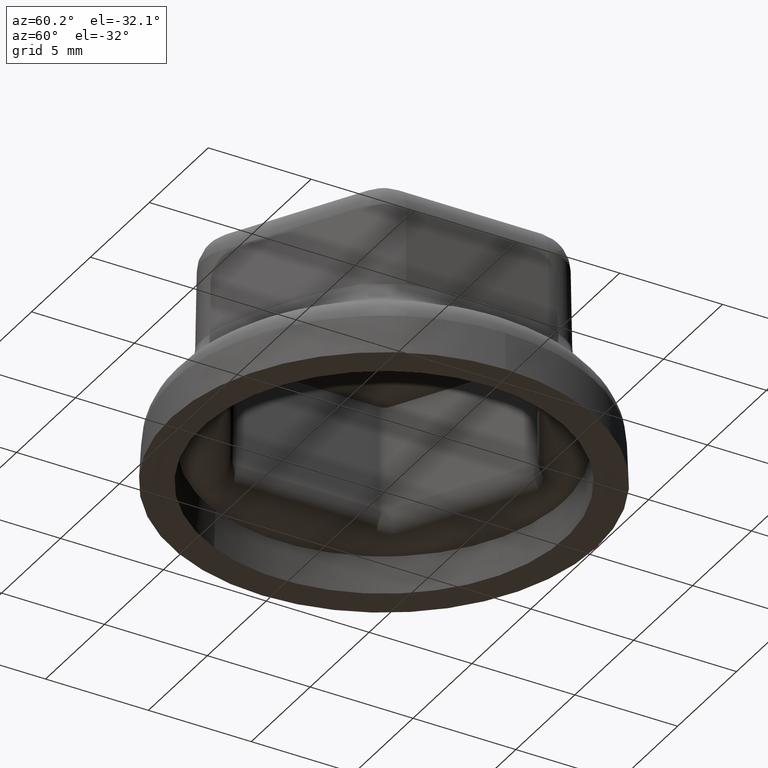
[diagram: clean part render]
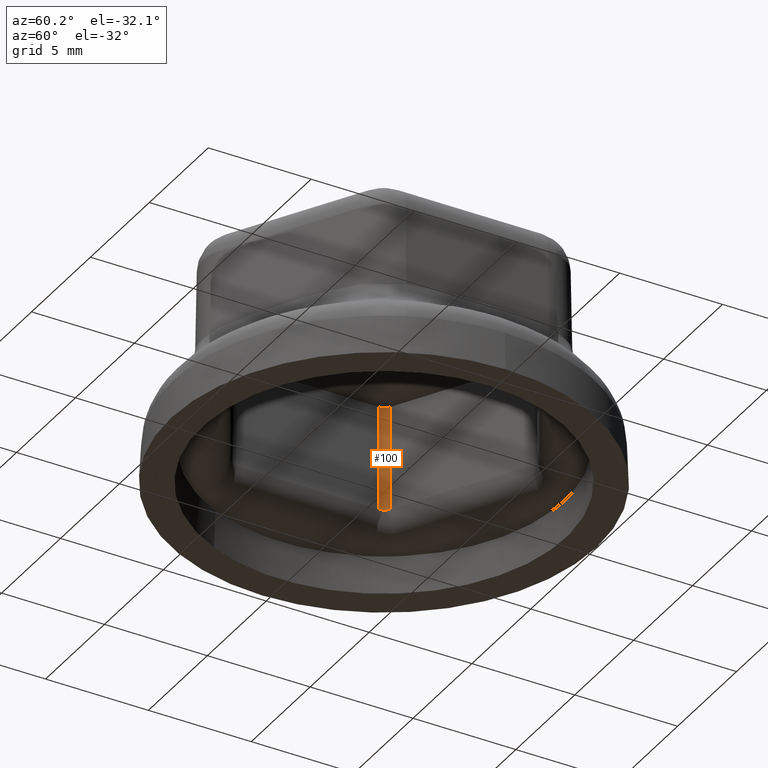
[diagram: same view with one face highlighted and labeled with its STEP entity id]
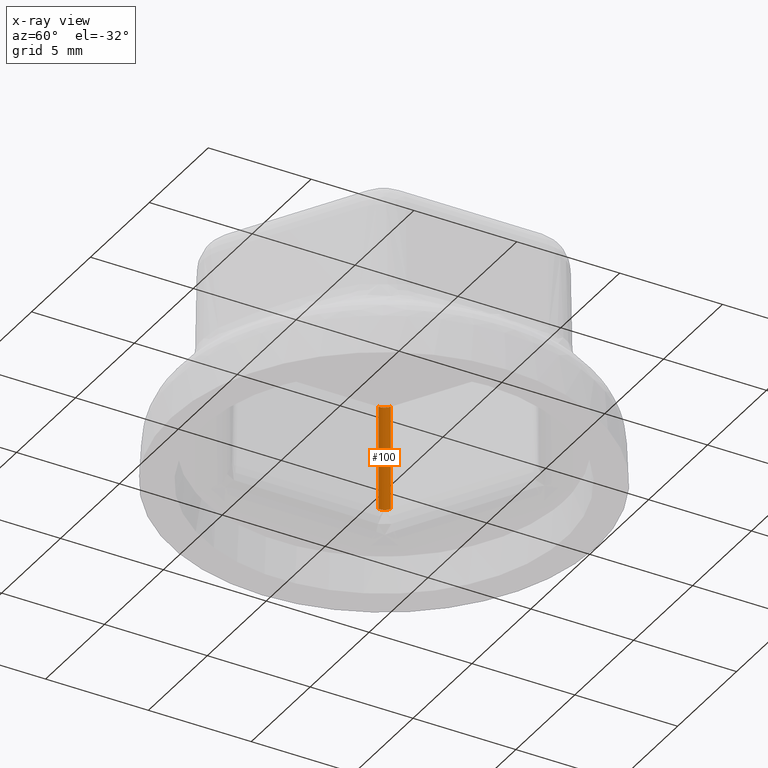
[diagram: x-ray of the same camera — body ghosted, the highlighted face saturated]
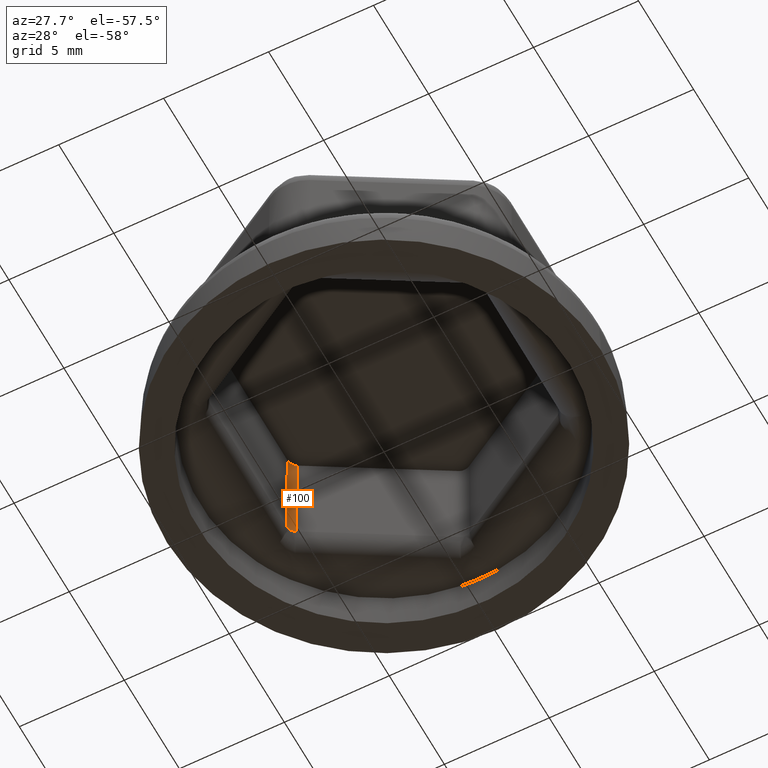
[diagram: same view with one face highlighted and labeled with its STEP entity id]
A machine part, auxiliary view. The second image highlights one B-rep face of the part: STEP entity #100.
The next image is the same camera in x-ray: the body ghosted, the highlighted face saturated — about 0% of this face is hidden behind the body in this view.
A second angle (auxiliary view) of the same face is appended — the face is thin or edge-on in the first view.
In plain terms, the highlighted cylindrical surface (edge-blend (fillet) strip) has radius 0.5 mm, axis along (0.0175, -0.0101, 0.9998).
Its self-contained STEP definition (entity closure, byte-faithful):
#100 = ADVANCED_FACE( '', ( #233 ), #234, .F. );
#233 = FACE_OUTER_BOUND( '', #955, .T. );
#234 = CYLINDRICAL_SURFACE( '', #956, 0.500000000000000 );
#955 = EDGE_LOOP( '', ( #4052, #4053, #4054, #4055, #4056, #4057 ) );
#956 = AXIS2_PLACEMENT_3D( '', #4058, #4059, #4060 );
#4052 = ORIENTED_EDGE( '', *, *, #4621, .T. );
#4053 = ORIENTED_EDGE( '', *, *, #4549, .T. );
#4054 = ORIENTED_EDGE( '', *, *, #4622, .T. );
#4055 = ORIENTED_EDGE( '', *, *, #4617, .F. );
#4056 = ORIENTED_EDGE( '', *, *, #4623, .F. );
#4057 = ORIENTED_EDGE( '', *, *, #4624, .F. );
#4058 = CARTESIAN_POINT( '', ( -6.00012690395247, 3.46417488316887, 1.78836624353683 ) );
#4059 = DIRECTION( '', ( 0.0174515205435363, -0.0100756400835790, 0.999796942337605 ) );
#4060 = DIRECTION( '', ( -0.999847695156391, 0.000000000000000, 0.0174524064372835 ) );
#4549 = EDGE_CURVE( '', #4810, #4808, #4811, .T. );
#4617 = EDGE_CURVE( '', #4922, #4917, #4925, .F. );
#4621 = EDGE_CURVE( '', #4930, #4810, #4931, .T. );
#4622 = EDGE_CURVE( '', #4808, #4917, #4932, .F. );
#4623 = EDGE_CURVE( '', #4933, #4922, #4934, .T. );
#4624 = EDGE_CURVE( '', #4930, #4933, #4935, .F. );
#4808 = VERTEX_POINT( '', #5307 );
#4810 = VERTEX_POINT( '', #5310 );
#4811 = ELLIPSE( '', #5311, 0.500101549451592, 0.500000000000000 );
#4917 = VERTEX_POINT( '', #5519 );
#4922 = VERTEX_POINT( '', #5526 );
#4925 = ELLIPSE( '', #5529, 0.501622324286035, 0.500000000000000 );
#4930 = VERTEX_POINT( '', #5534 );
#4931 = LINE( '', #5535, #5536 );
#4932 = LINE( '', #5537, #5538 );
#4933 = VERTEX_POINT( '', #5539 );
#4934 = B_SPLINE_CURVE_WITH_KNOTS( '', 3, ( #5540, #5541, #5542, #5543, #5544, #5545, #5546, #5547, #5548, #5549, #5550, #5551, #5552, #5553, #5554, #5555, #5556, #5557, #5558, #5559, #5560, #5561 ), .UNSPECIFIED., .F., .F., ( 4, 2, 2, 2, 1, 2, 1, 2, 2, 2, 2, 4 ), ( 0.000000000000000, 5.49841992116954E-005, 0.000109968398423391, 0.000123714448226314, 0.000137460498029238, 0.000164952597635084, 0.000219936796846777, 0.000274920996058469, 0.000302413095664315, 0.000329905195270161, 0.000384889394481854, 0.000439873593693547 ), .UNSPECIFIED. );
#4935 = ELLIPSE( '', #5562, 0.501622324286035, 0.500000000000000 );
#5307 = CARTESIAN_POINT( '', ( -6.38654207796659, 3.39864061993129, 8.30000000000000 ) );
#5310 = CARTESIAN_POINT( '', ( -6.13658015417749, 3.83158737189167, 8.30000000000000 ) );
#5311 = AXIS2_PLACEMENT_3D( '', #6908, #6909, #6910 );
#5519 = CARTESIAN_POINT( '', ( -6.47427435193895, 3.44929287192586, 3.27382139034408 ) );
#5526 = CARTESIAN_POINT( '', ( -6.47250991385350, 3.49151581137032, 3.27263917789931 ) );
#5529 = AXIS2_PLACEMENT_3D( '', #7060, #7061, #7062 );
#5534 = CARTESIAN_POINT( '', ( -6.22431242814985, 3.88223962388623, 3.27382139034407 ) );
#5535 = CARTESIAN_POINT( '', ( -6.24810921654124, 3.89597870606985, 1.91050429646617 ) );
#5536 = VECTOR( '', #7072, 1000.00000000000 );
#5537 = CARTESIAN_POINT( '', ( -6.50005075153067, 3.46417488316887, 1.79709244675547 ) );
#5538 = VECTOR( '', #7073, 1000.00000000000 );
#5539 = CARTESIAN_POINT( '', ( -6.25999634728848, 3.85960010595859, 3.27263917789931 ) );
#5540 = CARTESIAN_POINT( '', ( -6.25999634728848, 3.85960010595859, 3.27263917789931 ) );
#5541 = CARTESIAN_POINT( '', ( -6.27515488291305, 3.84905825585473, 3.27216488131924 ) );
#5542 = CARTESIAN_POINT( '', ( -6.28961220870078, 3.83777585854451, 3.27115045498151 ) );
#5543 = CARTESIAN_POINT( '', ( -6.31718901267723, 3.81373366285170, 3.26883583886952 ) );
#5544 = CARTESIAN_POINT( '', ( -6.33030817333123, 3.80097375482324, 3.26753279845114 ) );
#5545 = CARTESIAN_POINT( '', ( -6.34586799356442, 3.78406703065293, 3.26607319874848 ) );
#5546 = CARTESIAN_POINT( '', ( -6.34894163142452, 3.78063330977052, 3.26578893296939 ) );
#5547 = CARTESIAN_POINT( '', ( -6.35498474380207, 3.77369078453924, 3.26524508511817 ) );
#5548 = CARTESIAN_POINT( '', ( -6.36388472680924, 3.76317482089631, 3.26446684285765 ) );
#5549 = CARTESIAN_POINT( '', ( -6.37229674791125, 3.75235579819300, 3.26382763882138 ) );
#5550 = CARTESIAN_POINT( '', ( -6.38848067163897, 3.73031959454378, 3.26278490250371 ) );
#5551 = CARTESIAN_POINT( '', ( -6.40835577402568, 3.69987827185108, 3.26203526557398 ) );
#5552 = CARTESIAN_POINT( '', ( -6.42484508634817, 3.66732810513468, 3.26278637279229 ) );
#5553 = CARTESIAN_POINT( '', ( -6.43590607656652, 3.64210302409320, 3.26384106199919 ) );
#5554 = CARTESIAN_POINT( '', ( -6.43938223674945, 3.63353635065720, 3.26427444004661 ) );
#5555 = CARTESIAN_POINT( '', ( -6.44581569370079, 3.61632571767327, 3.26525638587263 ) );
#5556 = CARTESIAN_POINT( '', ( -6.44878213689148, 3.60766422219429, 3.26580529713929 ) );
#5557 = CARTESIAN_POINT( '', ( -6.45694685229627, 3.58151051400850, 3.26754816779685 ) );
#5558 = CARTESIAN_POINT( '', ( -6.46141292255836, 3.56385002753157, 3.26884464503643 ) );
#5559 = CARTESIAN_POINT( '', ( -6.46841897305245, 3.52805383846989, 3.27115141318141 ) );
#5560 = CARTESIAN_POINT( '', ( -6.47095933518332, 3.50991840688720, 3.27216477837024 ) );
#5561 = CARTESIAN_POINT( '', ( -6.47250991385349, 3.49151581137032, 3.27263917789931 ) );
#5562 = AXIS2_PLACEMENT_3D( '', #7074, #7075, #7076 );
#6908 = CARTESIAN_POINT( '', ( -5.88646591394463, 3.39855267999149, 8.30000000000000 ) );
#6909 = DIRECTION( '', ( 0.000000000000000, 0.000000000000000, 1.00000000000000 ) );
#6910 = DIRECTION( '', ( -0.866025403784439, 0.500000000000000, 0.000000000000000 ) );
#7060 = CARTESIAN_POINT( '', ( -5.97374123858572, 3.44894111216663, 3.30000000000000 ) );
#7061 = DIRECTION( '', ( 0.0521852388698267, -0.0301291617092194, -0.998182816150829 ) );
#7062 = DIRECTION( '', ( -0.864451676407709, 0.499091408075414, -0.0602583234184388 ) );
#7072 = DIRECTION( '', ( 0.0174515205435363, -0.0100756400835790, 0.999796942337605 ) );
#7073 = DIRECTION( '', ( 0.0174515205435363, -0.0100756400835790, 0.999796942337605 ) );
#7074 = CARTESIAN_POINT( '', ( -5.97374123858572, 3.44894111216663, 3.30000000000000 ) );
#7075 = DIRECTION( '', ( 0.0521852388698267, -0.0301291617092194, -0.998182816150829 ) );
#7076 = DIRECTION( '', ( -0.864451676407709, 0.499091408075414, -0.0602583234184388 ) );